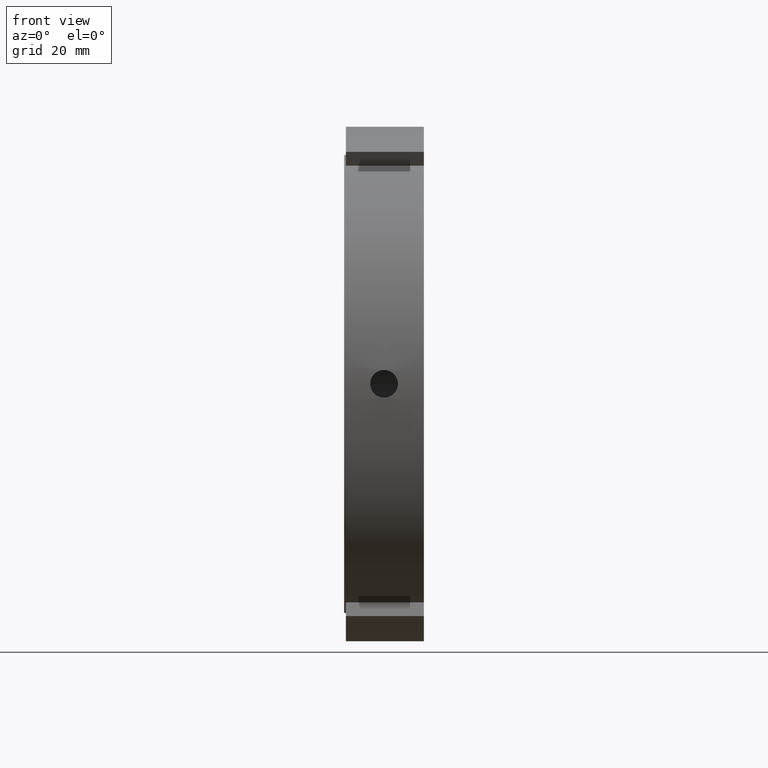
[diagram: clean part render]
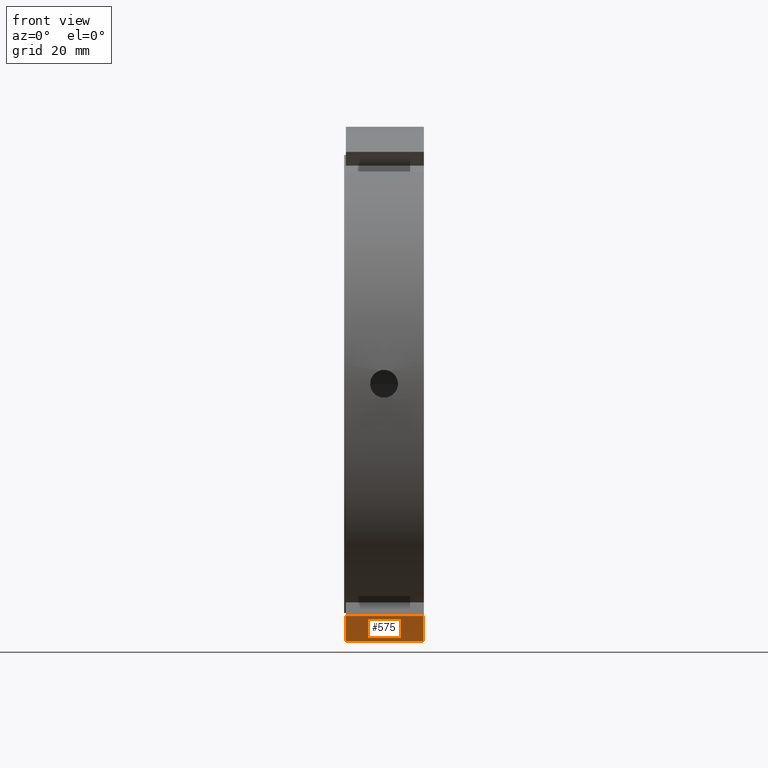
[diagram: same view with one face highlighted and labeled with its STEP entity id]
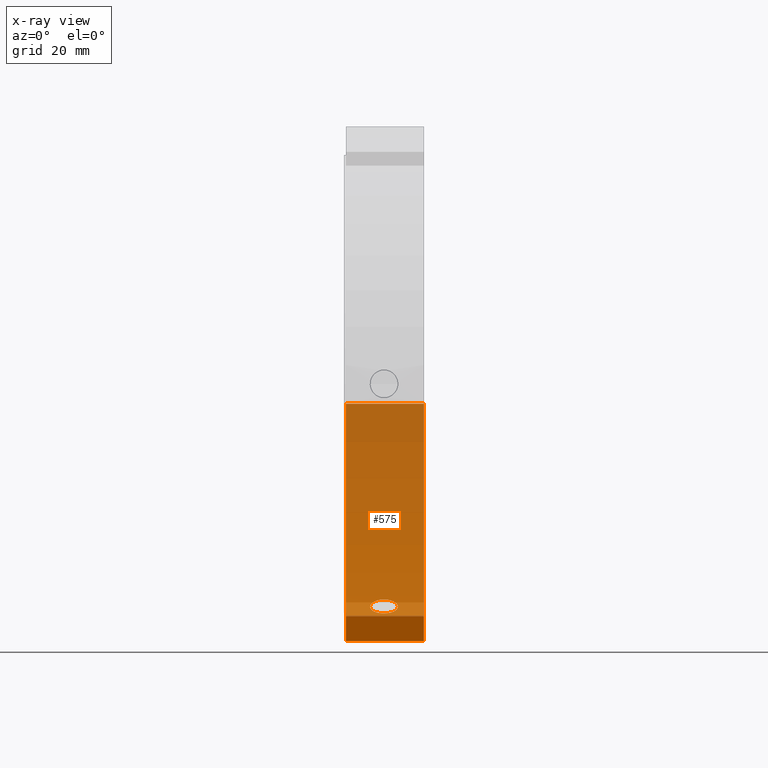
[diagram: x-ray of the same camera — body ghosted, the highlighted face saturated]
A machine part, front view. The second image highlights one B-rep face of the part: STEP entity #575.
The next image is the same camera in x-ray: the body ghosted, the highlighted face saturated — about 89% of this face is hidden behind the body in this view.
In plain terms, the highlighted cylindrical surface (partial cylindrical patch) has radius 77.5 mm, axis along (1, 0, 0).
Its self-contained STEP definition (entity closure, byte-faithful):
#113=CARTESIAN_POINT('',(0.499999999999980,-33.437544009294321,-69.915525104418009));
#114=VERTEX_POINT('',#113);
#123=CARTESIAN_POINT('',(23.999999999999986,-33.437544009294321,-69.915525104418009));
#124=VERTEX_POINT('',#123);
#125=CARTESIAN_POINT('',(23.999999999999986,-33.437544009294314,-69.915525104418009));
#126=DIRECTION('',(-1.0,0.0,0.0));
#127=VECTOR('',#126,23.500000000000007);
#128=LINE('',#125,#127);
#129=EDGE_CURVE('',#124,#114,#128,.T.);
#365=CARTESIAN_POINT('',(11.999999999999984,35.066465714596731,-69.112900259553655));
#366=VERTEX_POINT('',#365);
#367=CARTESIAN_POINT('',(11.999999999999982,35.066465714596731,-69.112900259553655));
#368=CARTESIAN_POINT('',(12.525964593773827,35.066465714596731,-69.112900259553655));
#369=CARTESIAN_POINT('',(13.086917241225184,35.160472341890710,-69.065454269889713));
#370=CARTESIAN_POINT('',(14.118723575508263,35.541322827497588,-68.870241472096751));
#371=CARTESIAN_POINT('',(14.589585949451681,35.828007890706118,-68.722210900215288));
#372=CARTESIAN_POINT('',(15.333140342570601,36.486161296447207,-68.375057251895470));
#373=CARTESIAN_POINT('',(15.655432256882120,36.901507437500996,-68.152733025825455));
#374=CARTESIAN_POINT('',(16.082864919867330,37.805750031976956,-67.655314163540794));
#375=CARTESIAN_POINT('',(16.187999999999985,38.294501431636661,-67.379951014354049));
#376=CARTESIAN_POINT('',(16.187999999999985,39.205498568363311,-66.853986572233936));
#377=CARTESIAN_POINT('',(16.082864919867326,39.688345750654968,-66.568397018586793));
#378=CARTESIAN_POINT('',(15.655432256882108,40.571244418953029,-66.034009391729001));
#379=CARTESIAN_POINT('',(15.333140342570605,40.971455917133284,-65.785471195247567));
#380=CARTESIAN_POINT('',(14.589585949451681,41.601176498465229,-65.389070450448457));
#381=CARTESIAN_POINT('',(14.118723575508255,41.872717265855563,-65.214809188765074));
#382=CARTESIAN_POINT('',(13.086917241225180,42.232201750691544,-64.982589392082360));
#383=CARTESIAN_POINT('',(12.525964593773827,42.320294496695183,-64.924900259553652));
#384=CARTESIAN_POINT('',(11.474035406226141,42.320294496695183,-64.924900259553652));
#385=CARTESIAN_POINT('',(10.913082758774788,42.232201750691544,-64.982589392082360));
#386=CARTESIAN_POINT('',(9.881276424491713,41.872717265855563,-65.214809188765074));
#387=CARTESIAN_POINT('',(9.410414050548287,41.601176498465229,-65.389070450448457));
#388=CARTESIAN_POINT('',(8.666859657429363,40.971455917133284,-65.785471195247567));
#389=CARTESIAN_POINT('',(8.344567743117864,40.571244418953029,-66.034009391729001));
#390=CARTESIAN_POINT('',(7.917135080132642,39.688345750654968,-66.568397018586793));
#391=CARTESIAN_POINT('',(7.811999999999983,39.205498568363311,-66.853986572233936));
#392=CARTESIAN_POINT('',(7.811999999999983,38.294501431636661,-67.379951014354049));
#393=CARTESIAN_POINT('',(7.917135080132637,37.805750031976956,-67.655314163540794));
#394=CARTESIAN_POINT('',(8.344567743117846,36.901507437500996,-68.152733025825455));
#395=CARTESIAN_POINT('',(8.666859657429365,36.486161296447207,-68.375057251895470));
#396=CARTESIAN_POINT('',(9.410414050548283,35.828007890706118,-68.722210900215288));
#397=CARTESIAN_POINT('',(9.881276424491700,35.541322827497588,-68.870241472096751));
#398=CARTESIAN_POINT('',(10.913082758774781,35.160472341890710,-69.065454269889713));
#399=CARTESIAN_POINT('',(11.474035406226140,35.066465714596731,-69.112900259553655));
#400=CARTESIAN_POINT('',(11.999999999999984,35.066465714596731,-69.112900259553655));
#401=B_SPLINE_CURVE_WITH_KNOTS('',3,(#367,#368,#369,#370,#371,#372,#373,#374,#375,#376,#377,#378,#379,#380,#381,#382,#383,#384,#385,#386,#387,#388,#389,#390,#391,#392,#393,#394,#395,#396,#397,#398,#399,#400),.UNSPECIFIED.,.T.,.U.,(4,2,2,2,2,2,2,2,2,2,2,2,2,2,2,2,4),(0.0,0.157789378132153,0.315578756264307,0.473368088900339,0.631157421536370,0.788946754172404,0.946736086808437,1.104525464940590,1.262314843072742,1.420104221204895,1.577893599337047,1.735682931973080,1.893472264609114,2.051261597245146,2.209050929881177,2.366840308013331,2.524629686145484),.UNSPECIFIED.);
#402=EDGE_CURVE('',#366,#366,#401,.T.);
#456=CARTESIAN_POINT('',(23.999999999999986,77.267392864001820,-5.999999999999996));
#457=VERTEX_POINT('',#456);
#458=CARTESIAN_POINT('',(23.999999999999986,0.0,0.0));
#459=DIRECTION('',(1.0,0.0,0.0));
#460=DIRECTION('',(0.0,1.0,0.0));
#461=AXIS2_PLACEMENT_3D('',#458,#459,#460);
#462=CIRCLE('',#461,77.500000000000000);
#463=EDGE_CURVE('',#124,#457,#462,.T.);
#548=CARTESIAN_POINT('',(12.249999999999982,0.0,0.0));
#549=DIRECTION('',(1.0,0.0,0.0));
#550=DIRECTION('',(0.0,1.0,0.0));
#551=AXIS2_PLACEMENT_3D('',#548,#549,#550);
#552=CYLINDRICAL_SURFACE('',#551,77.500000000000000);
#553=ORIENTED_EDGE('',*,*,#129,.T.);
#554=CARTESIAN_POINT('',(0.499999999999980,77.267392864001820,-5.999999999999996));
#555=VERTEX_POINT('',#554);
#556=CARTESIAN_POINT('',(0.499999999999980,0.0,0.0));
#557=DIRECTION('',(1.0,0.0,0.0));
#558=DIRECTION('',(0.0,1.0,0.0));
#559=AXIS2_PLACEMENT_3D('',#556,#557,#558);
#560=CIRCLE('',#559,77.500000000000000);
#561=EDGE_CURVE('',#114,#555,#560,.T.);
#562=ORIENTED_EDGE('',*,*,#561,.T.);
#563=CARTESIAN_POINT('',(0.499999999999979,77.267392864001820,-5.999999999999996));
#564=DIRECTION('',(1.0,0.0,0.0));
#565=VECTOR('',#564,23.500000000000007);
#566=LINE('',#563,#565);
#567=EDGE_CURVE('',#555,#457,#566,.T.);
#568=ORIENTED_EDGE('',*,*,#567,.T.);
#569=ORIENTED_EDGE('',*,*,#463,.F.);
#570=EDGE_LOOP('',(#553,#562,#568,#569));
#571=FACE_OUTER_BOUND('',#570,.T.);
#572=ORIENTED_EDGE('',*,*,#402,.T.);
#573=EDGE_LOOP('',(#572));
#574=FACE_BOUND('',#573,.T.);
#575=ADVANCED_FACE('',(#571,#574),#552,.T.);